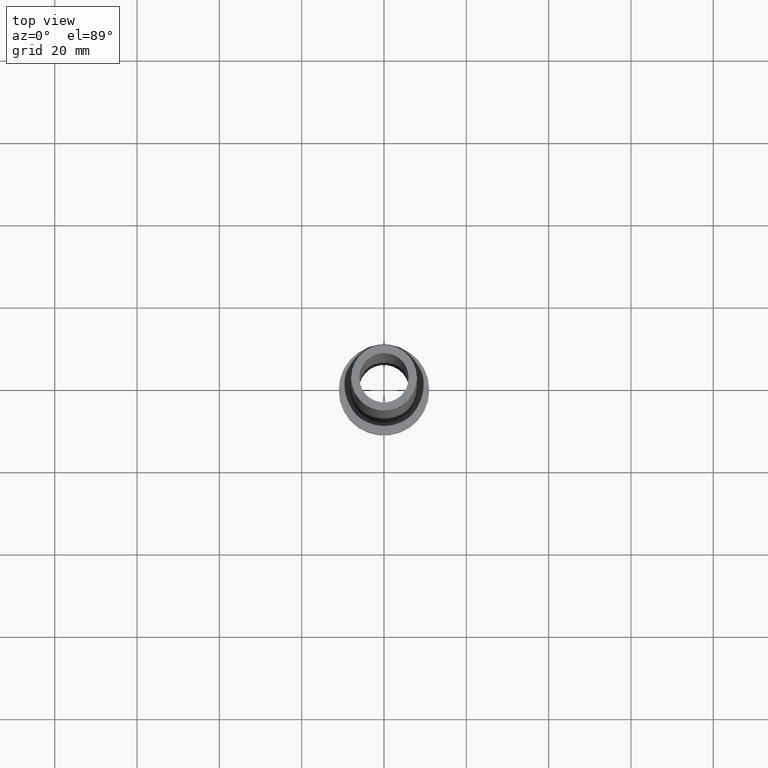
[diagram: clean part render]
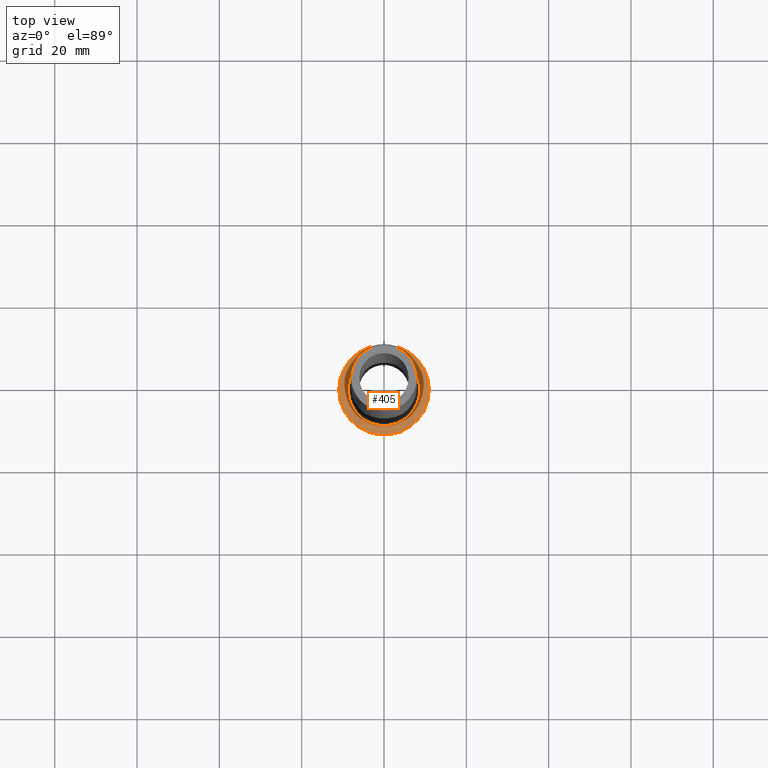
[diagram: same view with one face highlighted and labeled with its STEP entity id]
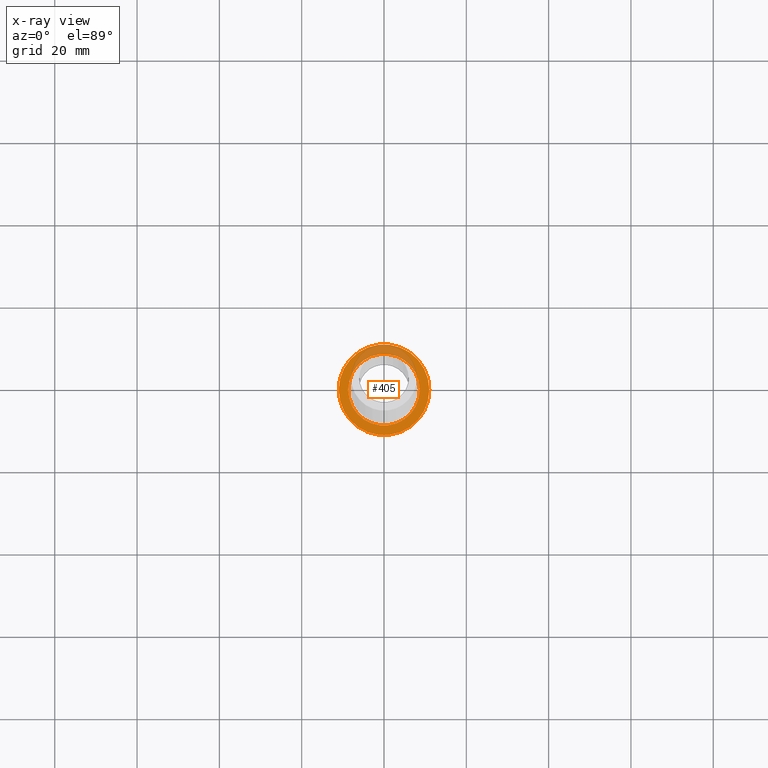
[diagram: x-ray of the same camera — body ghosted, the highlighted face saturated]
A machine part, top view. The second image highlights one B-rep face of the part: STEP entity #405.
The next image is the same camera in x-ray: the body ghosted, the highlighted face saturated — about 22% of this face is hidden behind the body in this view.
In plain terms, the highlighted planar face has unit normal (0, 0, 1).
Its self-contained STEP definition (entity closure, byte-faithful):
#1 = ORIENTED_EDGE ( 'NONE', *, *, #388, .T. ) ;
#12 = DIRECTION ( 'NONE',  ( 0.000000000000000000, 0.000000000000000000, 1.000000000000000000 ) ) ;
#13 = CARTESIAN_POINT ( 'NONE',  ( 8.699999999999999289, 0.000000000000000000, 7.000000000000006217 ) ) ;
#17 = CARTESIAN_POINT ( 'NONE',  ( 0.000000000000000000, 0.000000000000000000, 7.000000000000000000 ) ) ;
#23 = DIRECTION ( 'NONE',  ( 1.000000000000000000, 0.000000000000000000, 0.000000000000000000 ) ) ;
#55 = DIRECTION ( 'NONE',  ( 1.000000000000000000, 0.000000000000000000, 0.000000000000000000 ) ) ;
#64 = CIRCLE ( 'NONE', #180, 11.00000000000000000 ) ;
#69 = CARTESIAN_POINT ( 'NONE',  ( -8.699999999999999289, 1.065442715258197248E-15, 7.000000000000006217 ) ) ;
#80 = ORIENTED_EDGE ( 'NONE', *, *, #449, .T. ) ;
#81 = ORIENTED_EDGE ( 'NONE', *, *, #324, .T. ) ;
#91 = DIRECTION ( 'NONE',  ( 0.000000000000000000, 0.000000000000000000, 1.000000000000000000 ) ) ;
#115 = VERTEX_POINT ( 'NONE', #13 ) ;
#125 = AXIS2_PLACEMENT_3D ( 'NONE', #273, #448, #416 ) ;
#130 = CARTESIAN_POINT ( 'NONE',  ( 0.000000000000000000, 0.000000000000000000, 7.000000000000000000 ) ) ;
#162 = CARTESIAN_POINT ( 'NONE',  ( 0.000000000000000000, 0.000000000000000000, 7.000000000000000000 ) ) ;
#163 = VERTEX_POINT ( 'NONE', #340 ) ;
#170 = CIRCLE ( 'NONE', #424, 11.00000000000000000 ) ;
#171 = DIRECTION ( 'NONE',  ( 1.000000000000000000, 0.000000000000000000, 0.000000000000000000 ) ) ;
#180 = AXIS2_PLACEMENT_3D ( 'NONE', #162, #91, #55 ) ;
#187 = VERTEX_POINT ( 'NONE', #69 ) ;
#192 = CIRCLE ( 'NONE', #242, 8.699999999999999289 ) ;
#206 = DIRECTION ( 'NONE',  ( -0.000000000000000000, -0.000000000000000000, -1.000000000000000000 ) ) ;
#225 = ORIENTED_EDGE ( 'NONE', *, *, #385, .T. ) ;
#230 = EDGE_LOOP ( 'NONE', ( #1, #225 ) ) ;
#242 = AXIS2_PLACEMENT_3D ( 'NONE', #17, #440, #23 ) ;
#255 = CIRCLE ( 'NONE', #389, 8.699999999999999289 ) ;
#273 = CARTESIAN_POINT ( 'NONE',  ( 0.000000000000000000, 0.000000000000000000, 7.000000000000000000 ) ) ;
#278 = DIRECTION ( 'NONE',  ( 1.000000000000000000, 0.000000000000000000, 0.000000000000000000 ) ) ;
#288 = CARTESIAN_POINT ( 'NONE',  ( -11.00000000000000000, 0.000000000000000000, 7.000000000000000000 ) ) ;
#299 = VERTEX_POINT ( 'NONE', #288 ) ;
#314 = PLANE ( 'NONE',  #125 ) ;
#324 = EDGE_CURVE ( 'NONE', #163, #299, #170, .T. ) ;
#340 = CARTESIAN_POINT ( 'NONE',  ( 11.00000000000000000, 1.347111479062088405E-15, 7.000000000000000000 ) ) ;
#352 = CARTESIAN_POINT ( 'NONE',  ( 0.000000000000000000, 0.000000000000000000, 7.000000000000000000 ) ) ;
#385 = EDGE_CURVE ( 'NONE', #187, #115, #255, .T. ) ;
#388 = EDGE_CURVE ( 'NONE', #115, #187, #192, .T. ) ;
#389 = AXIS2_PLACEMENT_3D ( 'NONE', #130, #206, #171 ) ;
#405 = ADVANCED_FACE ( 'NONE', ( #446, #411 ), #314, .T. ) ;
#406 = EDGE_LOOP ( 'NONE', ( #80, #81 ) ) ;
#411 = FACE_OUTER_BOUND ( 'NONE', #406, .T. ) ;
#416 = DIRECTION ( 'NONE',  ( 1.000000000000000000, 0.000000000000000000, -0.000000000000000000 ) ) ;
#424 = AXIS2_PLACEMENT_3D ( 'NONE', #352, #12, #278 ) ;
#440 = DIRECTION ( 'NONE',  ( -0.000000000000000000, -0.000000000000000000, -1.000000000000000000 ) ) ;
#446 = FACE_BOUND ( 'NONE', #230, .T. ) ;
#448 = DIRECTION ( 'NONE',  ( 0.000000000000000000, 0.000000000000000000, 1.000000000000000000 ) ) ;
#449 = EDGE_CURVE ( 'NONE', #299, #163, #64, .T. ) ;